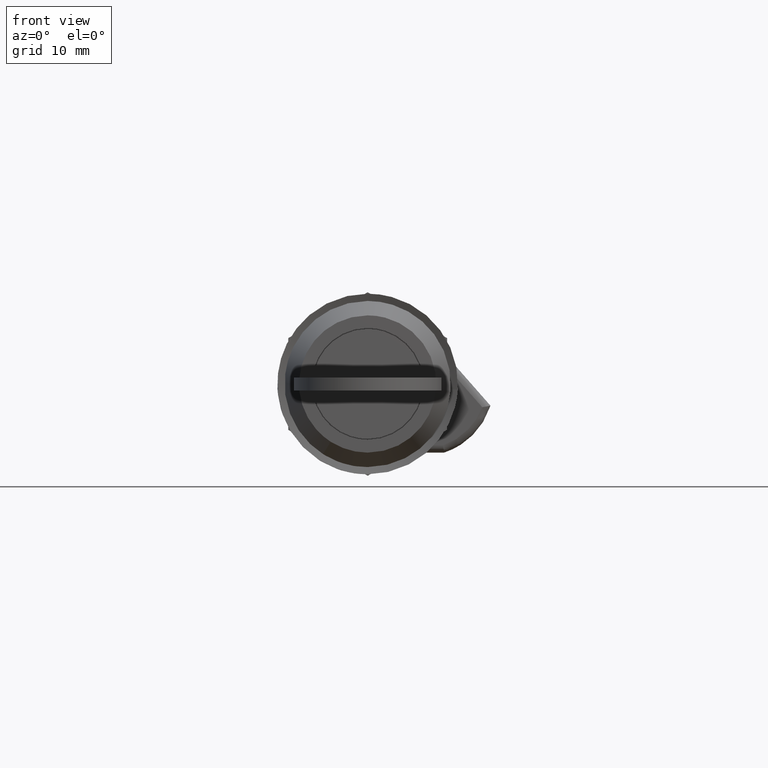
[diagram: clean part render]
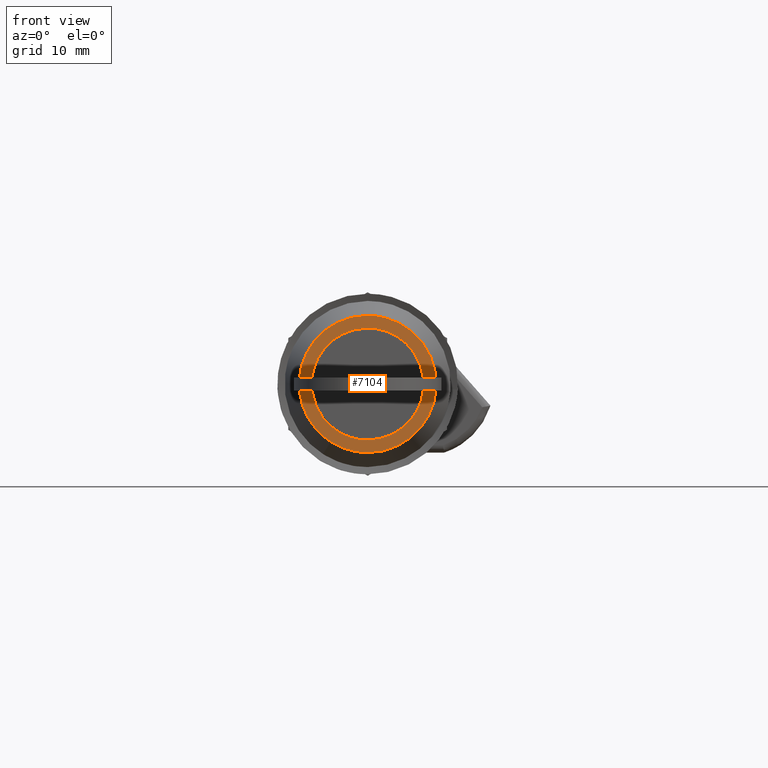
[diagram: same view with one face highlighted and labeled with its STEP entity id]
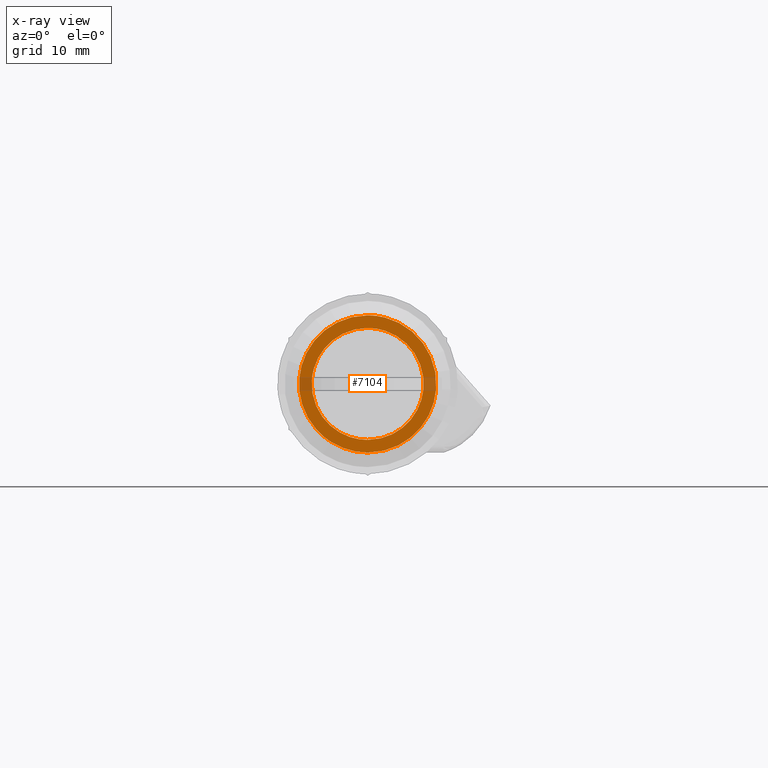
[diagram: x-ray of the same camera — body ghosted, the highlighted face saturated]
A machine part, front view. The second image highlights one B-rep face of the part: STEP entity #7104.
The next image is the same camera in x-ray: the body ghosted, the highlighted face saturated — about 7% of this face is hidden behind the body in this view.
In plain terms, the highlighted face is a freeform B-spline surface patch.
Its self-contained STEP definition (entity closure, byte-faithful):
#6062=CARTESIAN_POINT('',(4.259142E-017,-7.695823829300668,-0.914765318739158));
#6063=VERTEX_POINT('',#6062);
#6069=CARTESIAN_POINT('',(0.0,0.0,7.750000000000014));
#6070=VERTEX_POINT('',#6069);
#6071=CARTESIAN_POINT('',(4.259142E-017,-7.695823829300668,-0.914765318739158));
#6072=CARTESIAN_POINT('',(0.0,-7.749999999999999,-0.458986927453161));
#6073=CARTESIAN_POINT('',(0.0,-7.750000000000000,1.421085E-014));
#6074=CARTESIAN_POINT('',(0.0,-7.750000000000001,7.750000000000014));
#6075=CARTESIAN_POINT('',(0.0,0.0,7.750000000000014));
#6083=(BOUNDED_CURVE()B_SPLINE_CURVE(2,(#6071,#6072,#6073,#6074,#6075),.UNSPECIFIED.,.F.,.U.)B_SPLINE_CURVE_WITH_KNOTS((3,2,3),(0.229562473509087,0.250000000000000,0.500000000000000),.UNSPECIFIED.)CURVE()GEOMETRIC_REPRESENTATION_ITEM()RATIONAL_B_SPLINE_CURVE((0.956026754175034,0.976055948325965,1.0,0.707106781186548,1.0))REPRESENTATION_ITEM(''));
#6084=EDGE_CURVE('',#6063,#6070,#6083,.T.);
#6086=CARTESIAN_POINT('',(3.816392E-017,7.735544687758766,0.473126181570145));
#6087=VERTEX_POINT('',#6086);
#6088=CARTESIAN_POINT('',(0.0,0.0,7.750000000000014));
#6089=CARTESIAN_POINT('',(0.0,7.290472018188698,7.750000000000014));
#6090=CARTESIAN_POINT('',(3.816392E-017,7.735544687758766,0.473126181570145));
#6098=(BOUNDED_CURVE()B_SPLINE_CURVE(2,(#6088,#6089,#6090),.UNSPECIFIED.,.F.,.U.)B_SPLINE_CURVE_WITH_KNOTS((3,3),(0.500000000000000,0.739332962234162),.UNSPECIFIED.)CURVE()GEOMETRIC_REPRESENTATION_ITEM()RATIONAL_B_SPLINE_CURVE((1.0,0.719603993292311,0.976072041656472))REPRESENTATION_ITEM(''));
#6099=EDGE_CURVE('',#6070,#6087,#6098,.T.);
#6173=CARTESIAN_POINT('',(0.0,0.0,-7.749999999999986));
#6174=VERTEX_POINT('',#6173);
#6175=CARTESIAN_POINT('',(3.816392E-017,7.735544687758766,0.473126181570145));
#6176=CARTESIAN_POINT('',(0.0,7.750000000000000,0.236783915739558));
#6177=CARTESIAN_POINT('',(0.0,7.750000000000000,1.421085E-014));
#6178=CARTESIAN_POINT('',(0.0,7.750000000000001,-7.749999999999986));
#6179=CARTESIAN_POINT('',(0.0,0.0,-7.749999999999986));
#6187=(BOUNDED_CURVE()B_SPLINE_CURVE(2,(#6175,#6176,#6177,#6178,#6179),.UNSPECIFIED.,.F.,.U.)B_SPLINE_CURVE_WITH_KNOTS((3,2,3),(0.739332962234162,0.750000000000000,1.0),.UNSPECIFIED.)CURVE()GEOMETRIC_REPRESENTATION_ITEM()RATIONAL_B_SPLINE_CURVE((0.976072041656471,0.987502787894236,1.0,0.707106781186548,1.0))REPRESENTATION_ITEM(''));
#6188=EDGE_CURVE('',#6087,#6174,#6187,.T.);
#6190=CARTESIAN_POINT('',(0.0,0.0,-7.749999999999986));
#6191=CARTESIAN_POINT('',(0.0,-6.883352575854158,-7.749999999999986));
#6192=CARTESIAN_POINT('',(4.259142E-017,-7.695823829300668,-0.914765318739158));
#6200=(BOUNDED_CURVE()B_SPLINE_CURVE(2,(#6190,#6191,#6192),.UNSPECIFIED.,.F.,.U.)B_SPLINE_CURVE_WITH_KNOTS((3,3),(0.0,0.229562473509087),.UNSPECIFIED.)CURVE()GEOMETRIC_REPRESENTATION_ITEM()RATIONAL_B_SPLINE_CURVE((1.0,0.731050832860582,0.956026754175034))REPRESENTATION_ITEM(''));
#6201=EDGE_CURVE('',#6174,#6063,#6200,.T.);
#6248=CARTESIAN_POINT('',(7.044022E-012,5.109582537800160,-8.008880464176897));
#6249=VERTEX_POINT('',#6248);
#6255=CARTESIAN_POINT('',(-1.745064E-015,0.0,9.500000000000014));
#6256=VERTEX_POINT('',#6255);
#6257=CARTESIAN_POINT('',(-1.745064E-015,0.0,9.500000000000014));
#6258=CARTESIAN_POINT('',(-1.745064E-015,9.500000000000000,9.500000000000014));
#6259=CARTESIAN_POINT('',(-1.745064E-015,9.500000000000000,1.421085E-014));
#6260=CARTESIAN_POINT('',(-1.745064E-015,9.500000000000000,-5.207839732048215));
#6261=CARTESIAN_POINT('',(7.044022E-012,5.109582537800160,-8.008880464176897));
#6269=(BOUNDED_CURVE()B_SPLINE_CURVE(2,(#6257,#6258,#6259,#6260,#6261),.UNSPECIFIED.,.F.,.U.)B_SPLINE_CURVE_WITH_KNOTS((3,2,3),(0.0,0.250000000000000,0.407950112625308),.UNSPECIFIED.)CURVE()GEOMETRIC_REPRESENTATION_ITEM()RATIONAL_B_SPLINE_CURVE((1.0,0.707106781186548,1.0,0.814949932404905,0.863729296953538))REPRESENTATION_ITEM(''));
#6270=EDGE_CURVE('',#6256,#6249,#6269,.T.);
#6272=CARTESIAN_POINT('',(2.863392E-011,-9.470714670466661,-0.745361409572238));
#6273=VERTEX_POINT('',#6272);
#6274=CARTESIAN_POINT('',(2.863392E-011,-9.470714670466661,-0.745361409572238));
#6275=CARTESIAN_POINT('',(-1.745064E-015,-9.500000000000000,-0.373256016730174));
#6276=CARTESIAN_POINT('',(-1.745064E-015,-9.500000000000000,1.421085E-014));
#6277=CARTESIAN_POINT('',(-1.745064E-015,-9.500000000000000,9.500000000000014));
#6278=CARTESIAN_POINT('',(-1.745064E-015,0.0,9.500000000000014));
#6286=(BOUNDED_CURVE()B_SPLINE_CURVE(2,(#6274,#6275,#6276,#6277,#6278),.UNSPECIFIED.,.F.,.U.)B_SPLINE_CURVE_WITH_KNOTS((3,2,3),(0.736331300627098,0.750000000000000,1.0),.UNSPECIFIED.)CURVE()GEOMETRIC_REPRESENTATION_ITEM()RATIONAL_B_SPLINE_CURVE((0.969723356159985,0.983986122574709,1.0,0.707106781186548,1.0))REPRESENTATION_ITEM(''));
#6287=EDGE_CURVE('',#6273,#6256,#6286,.T.);
#6391=CARTESIAN_POINT('',(-1.745064E-015,0.0,-9.499999999999986));
#6392=VERTEX_POINT('',#6391);
#6393=CARTESIAN_POINT('',(-1.745064E-015,0.0,-9.499999999999986));
#6394=CARTESIAN_POINT('',(-1.745064E-015,-8.781709670461627,-9.499999999999986));
#6395=CARTESIAN_POINT('',(2.863392E-011,-9.470714670466661,-0.745361409572238));
#6403=(BOUNDED_CURVE()B_SPLINE_CURVE(2,(#6393,#6394,#6395),.UNSPECIFIED.,.F.,.U.)B_SPLINE_CURVE_WITH_KNOTS((3,3),(0.500000000000000,0.736331300627097),.UNSPECIFIED.)CURVE()GEOMETRIC_REPRESENTATION_ITEM()RATIONAL_B_SPLINE_CURVE((1.0,0.723120658611839,0.969723356159983))REPRESENTATION_ITEM(''));
#6404=EDGE_CURVE('',#6392,#6273,#6403,.T.);
#6406=CARTESIAN_POINT('',(7.044022E-012,5.109582537800160,-8.008880464176897));
#6407=CARTESIAN_POINT('',(-1.745064E-015,2.772366526179392,-9.499999999999986));
#6408=CARTESIAN_POINT('',(-1.745064E-015,0.0,-9.499999999999986));
#6416=(BOUNDED_CURVE()B_SPLINE_CURVE(2,(#6406,#6407,#6408),.UNSPECIFIED.,.F.,.U.)B_SPLINE_CURVE_WITH_KNOTS((3,3),(0.407950112625308,0.500000000000000),.UNSPECIFIED.)CURVE()GEOMETRIC_REPRESENTATION_ITEM()RATIONAL_B_SPLINE_CURVE((0.863729296953539,0.892156848781642,1.0))REPRESENTATION_ITEM(''));
#6417=EDGE_CURVE('',#6249,#6392,#6416,.T.);
#7087=CARTESIAN_POINT('',(-8.725320E-016,-10.446114912511060,10.449049963174330));
#7088=CARTESIAN_POINT('',(-8.725320E-016,-10.446114912511060,-10.449050472794010));
#7089=CARTESIAN_POINT('',(-8.725320E-016,10.445398726941290,10.449049963174330));
#7090=CARTESIAN_POINT('',(-8.725320E-016,10.445398726941290,-10.449050472794010));
#7091=B_SPLINE_SURFACE_WITH_KNOTS('',1,1,((#7087,#7089),(#7088,#7090)),.UNSPECIFIED.,.F.,.F.,.U.,(2,2),(2,2),(0.0,20.898100435968342),(0.0,20.891513639452349),.UNSPECIFIED.);
#7092=ORIENTED_EDGE('',*,*,#6270,.T.);
#7093=ORIENTED_EDGE('',*,*,#6417,.T.);
#7094=ORIENTED_EDGE('',*,*,#6404,.T.);
#7095=ORIENTED_EDGE('',*,*,#6287,.T.);
#7096=EDGE_LOOP('',(#7092,#7093,#7094,#7095));
#7097=FACE_OUTER_BOUND('',#7096,.T.);
#7098=ORIENTED_EDGE('',*,*,#6099,.F.);
#7099=ORIENTED_EDGE('',*,*,#6084,.F.);
#7100=ORIENTED_EDGE('',*,*,#6201,.F.);
#7101=ORIENTED_EDGE('',*,*,#6188,.F.);
#7102=EDGE_LOOP('',(#7098,#7099,#7100,#7101));
#7103=FACE_BOUND('',#7102,.T.);
#7104=ADVANCED_FACE('',(#7097,#7103),#7091,.F.);